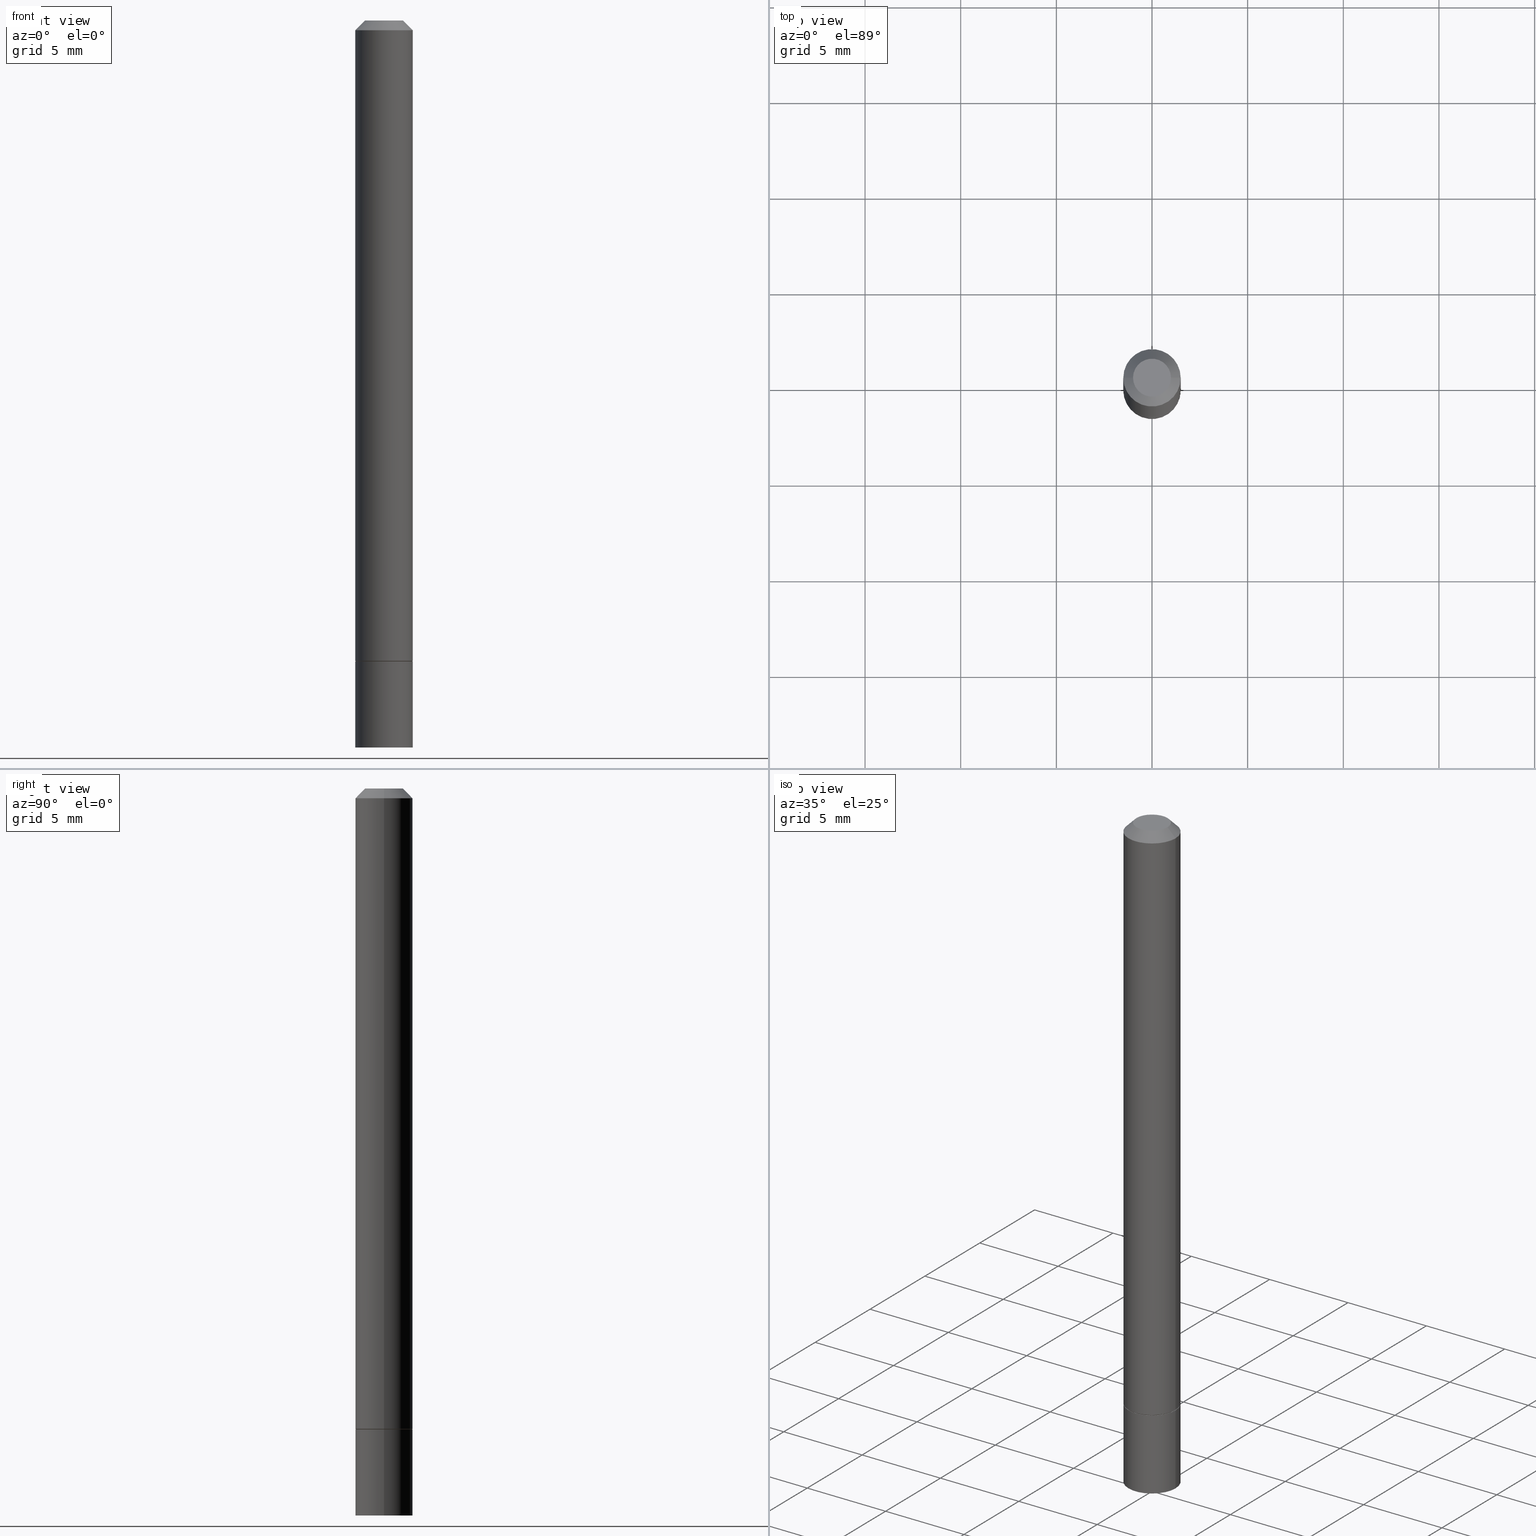
[diagram: canonical four-view strip — front | top / right | iso, engineering-drawing reading convention]
A machine part, canonical four-view strip (front | top / right | iso — engineering-drawing reading convention). The complete STEP part file that produces these views, byte-faithful:
ISO-10303-21;
HEADER;
FILE_DESCRIPTION (( 'STEP AP203' ),
    '1' );
FILE_NAME ('05089.STEP',
    '2024-02-27T12:31:33',
    ( '' ),
    ( '' ),
    'SwSTEP 2.0',
    'SolidWorks 2023',
    '' );
FILE_SCHEMA (( 'CONFIG_CONTROL_DESIGN' ));
ENDSEC;

DATA;
#1 = VERTEX_POINT ( 'NONE', #292 ) ;
#2 = ADVANCED_FACE ( 'NONE', ( #235 ), #183, .T. ) ;
#3 = EDGE_LOOP ( 'NONE', ( #238, #129, #172, #340 ) ) ;
#4 = ADVANCED_FACE ( 'NONE', ( #213 ), #23, .T. ) ;
#5 = ORIENTED_EDGE ( 'NONE', *, *, #57, .F. ) ;
#6 = EDGE_LOOP ( 'NONE', ( #256, #145, #141, #150 ) ) ;
#7 = PERSON_AND_ORGANIZATION ( #35, #90 ) ;
#8 = LINE ( 'NONE', #319, #134 ) ;
#9 = DIRECTION ( 'NONE',  ( -2.445468806185136877E-29, 3.491481338843145188E-15, 1.000000000000000000 ) ) ;
#10 = DIRECTION ( 'NONE',  ( 1.000000000000000000, -6.982962677686272233E-15, 0.000000000000000000 ) ) ;
#11 = CARTESIAN_POINT ( 'NONE',  ( 3.225328808477576615E-29, -4.604914737800224341E-15, -1.318899999999999961 ) ) ;
#12 = EDGE_CURVE ( 'NONE', #311, #338, #117, .T. ) ;
#13 = LINE ( 'NONE', #45, #133 ) ;
#14 = AXIS2_PLACEMENT_3D ( 'NONE', #225, #333, #274 ) ;
#15 = LINE ( 'NONE', #18, #174 ) ;
#16 = AXIS2_PLACEMENT_3D ( 'NONE', #55, #223, #136 ) ;
#17 = CARTESIAN_POINT ( 'NONE',  ( 1.043851414335219781E-45, -1.490343170380447145E-31, -4.268512490100411279E-17 ) ) ;
#18 = CARTESIAN_POINT ( 'NONE',  ( 0.05904999999999994975, -4.749420335452716734E-16, -0.02000000000000006287 ) ) ;
#19 = DIRECTION ( 'NONE',  ( -1.000000000000000000, 6.982962677686266711E-15, 0.000000000000000000 ) ) ;
#20 = CC_DESIGN_PERSON_AND_ORGANIZATION_ASSIGNMENT ( #56, #278, ( #301 ) ) ;
#21 = FACE_OUTER_BOUND ( 'NONE', #3, .T. ) ;
#22 = DATE_AND_TIME ( #268, #337 ) ;
#23 = CONICAL_SURFACE ( 'NONE', #262, 0.05904999999999994975, 0.7853981633974476129 ) ;
#24 = APPROVAL_PERSON_ORGANIZATION ( #7, #243, #38 ) ;
#25 = PERSON_AND_ORGANIZATION ( #35, #90 ) ;
#26 = DIRECTION ( 'NONE',  ( -2.445468806185136597E-29, 3.491481338843145583E-15, 1.000000000000000000 ) ) ;
#27 = DIRECTION ( 'NONE',  ( 1.000000000000000000, -6.982962677686266711E-15, 4.873707401586867728E-29 ) ) ;
#28 = COORDINATED_UNIVERSAL_TIME_OFFSET ( 5, 0, .BEHIND. ) ;
#29 = AXIS2_PLACEMENT_3D ( 'NONE', #288, #323, #19 ) ;
#30 = SECURITY_CLASSIFICATION ( '', '', #168 ) ;
#31 = DIRECTION ( 'NONE',  ( -2.438088387897960049E-29, 3.491481338843145188E-15, 1.000000000000000000 ) ) ;
#32 = ORIENTED_EDGE ( 'NONE', *, *, #91, .F. ) ;
#33 = ORIENTED_EDGE ( 'NONE', *, *, #271, .T. ) ;
#34 = EDGE_CURVE ( 'NONE', #257, #307, #52, .T. ) ;
#35 = PERSON ( 'UNSPECIFIED', 'UNSPECIFIED', 'UNSPECIFIED', ('UNSPECIFIED'), ('UNSPECIFIED'), ('UNSPECIFIED') ) ;
#36 = EDGE_LOOP ( 'NONE', ( #98, #322 ) ) ;
#37 = EDGE_LOOP ( 'NONE', ( #39, #342, #242, #115 ) ) ;
#38 = APPROVAL_ROLE ( '' ) ;
#39 = ORIENTED_EDGE ( 'NONE', *, *, #165, .F. ) ;
#40 = ADVANCED_FACE ( 'NONE', ( #149 ), #224, .T. ) ;
#41 = CARTESIAN_POINT ( 'NONE',  ( 0.000000000000000000, 0.000000000000000000, 0.000000000000000000 ) ) ;
#42 = ORIENTED_EDGE ( 'NONE', *, *, #34, .T. ) ;
#43 = CYLINDRICAL_SURFACE ( 'NONE', #155, 0.05905000000000000526 ) ;
#44 = AXIS2_PLACEMENT_3D ( 'NONE', #179, #216, #49 ) ;
#45 = CARTESIAN_POINT ( 'NONE',  ( -0.05804999999999999744, -4.192444679691485856E-15, -1.318899999999999961 ) ) ;
#46 = LINE ( 'NONE', #130, #110 ) ;
#47 = EDGE_CURVE ( 'NONE', #96, #73, #67, .T. ) ;
#48 = ORIENTED_EDGE ( 'NONE', *, *, #178, .F. ) ;
#49 = DIRECTION ( 'NONE',  ( 1.000000000000000000, -6.982962677686266711E-15, 0.000000000000000000 ) ) ;
#50 = APPROVAL_ROLE ( '' ) ;
#51 = CARTESIAN_POINT ( 'NONE',  ( 0.000000000000000000, 0.000000000000000000, 0.000000000000000000 ) ) ;
#52 = CIRCLE ( 'NONE', #127, 0.03904999999999995974 ) ;
#53 =( NAMED_UNIT ( * ) PLANE_ANGLE_UNIT ( ) SI_UNIT ( $, .RADIAN. ) );
#54 = CARTESIAN_POINT ( 'NONE',  ( 3.225328808477576615E-29, -4.604914737800224341E-15, -1.318899999999999961 ) ) ;
#55 = CARTESIAN_POINT ( 'NONE',  ( 0.000000000000000000, 0.000000000000000000, 0.000000000000000000 ) ) ;
#56 = PERSON_AND_ORGANIZATION ( #35, #90 ) ;
#57 = EDGE_CURVE ( 'NONE', #211, #119, #331, .T. ) ;
#58 = CC_DESIGN_DATE_AND_TIME_ASSIGNMENT ( #77, #112, ( #229 ) ) ;
#59 = CC_DESIGN_APPROVAL ( #243, ( #30 ) ) ;
#60 = DATE_TIME_ROLE ( 'classification_date' ) ;
#61 = VERTEX_POINT ( 'NONE', #177 ) ;
#62 = DIRECTION ( 'NONE',  ( -1.000000000000000000, 6.982962677686265922E-15, -4.876176775795935793E-29 ) ) ;
#63 = AXIS2_PLACEMENT_3D ( 'NONE', #41, #265, #66 ) ;
#64 = EDGE_CURVE ( 'NONE', #119, #211, #95, .T. ) ;
#65 = DIRECTION ( 'NONE',  ( -2.445468806185136597E-29, 3.491481338843145583E-15, 1.000000000000000000 ) ) ;
#66 = DIRECTION ( 'NONE',  ( 1.000000000000000000, -6.982962677686267499E-15, 4.876176775795936353E-29 ) ) ;
#67 = LINE ( 'NONE', #326, #111 ) ;
#68 = CARTESIAN_POINT ( 'NONE',  ( 0.05804999999999999744, -5.010275721239912458E-15, -1.318899999999999961 ) ) ;
#69 = MANIFOLD_SOLID_BREP ( 'Body-Move/Copy2[2]', #239 ) ;
#70 = EDGE_LOOP ( 'NONE', ( #93, #230, #232, #264 ) ) ;
#71 = EDGE_CURVE ( 'NONE', #311, #96, #13, .T. ) ;
#72 = CIRCLE ( 'NONE', #148, 0.05904999999999999832 ) ;
#73 = VERTEX_POINT ( 'NONE', #294 ) ;
#74 = AXIS2_PLACEMENT_3D ( 'NONE', #250, #297, #166 ) ;
#75 = MANIFOLD_SOLID_BREP ( 'Body-Move/Copy2[1]', #358 ) ;
#76 = CARTESIAN_POINT ( 'NONE',  ( 0.05904999999999999832, -5.013767202578754676E-15, -1.317899999999999627 ) ) ;
#77 = DATE_AND_TIME ( #360, #167 ) ;
#78 = PLANE ( 'NONE',  #199 ) ;
#79 = EDGE_CURVE ( 'NONE', #257, #73, #156, .T. ) ;
#80 = CIRCLE ( 'NONE', #282, 0.05904999999999994975 ) ;
#81 = CARTESIAN_POINT ( 'NONE',  ( 2.726846925636483731E-16, 0.03904999999999995974, -1.576849087323267144E-16 ) ) ;
#82 = PRODUCT ( '05089', '05089', '', ( #187 ) ) ;
#83 = DATE_AND_TIME ( #247, #277 ) ;
#84 = CC_DESIGN_PERSON_AND_ORGANIZATION_ASSIGNMENT ( #135, #304, ( #301 ) ) ;
#85 = PERSON_AND_ORGANIZATION ( #35, #90 ) ;
#86 = AXIS2_PLACEMENT_3D ( 'NONE', #181, #348, #261 ) ;
#87 = DESIGN_CONTEXT ( 'detailed design', #336, 'design' ) ;
#88 = ORIENTED_EDGE ( 'NONE', *, *, #12, .F. ) ;
#89 = EDGE_LOOP ( 'NONE', ( #42, #245 ) ) ;
#90 = ORGANIZATION ( 'UNSPECIFIED', 'UNSPECIFIED', '' ) ;
#91 = EDGE_CURVE ( 'NONE', #73, #128, #80, .T. ) ;
#92 = FACE_OUTER_BOUND ( 'NONE', #206, .T. ) ;
#93 = ORIENTED_EDGE ( 'NONE', *, *, #71, .F. ) ;
#94 = DIRECTION ( 'NONE',  ( -2.445468806185136597E-29, 3.491481338843145583E-15, 1.000000000000000000 ) ) ;
#95 = CIRCLE ( 'NONE', #86, 0.05904999999999999832 ) ;
#96 = VERTEX_POINT ( 'NONE', #249 ) ;
#97 = DATE_AND_TIME ( #351, #203 ) ;
#98 = ORIENTED_EDGE ( 'NONE', *, *, #202, .F. ) ;
#99 = DIRECTION ( 'NONE',  ( 1.000000000000000000, -6.982962677686272233E-15, 0.000000000000000000 ) ) ;
#100 = CARTESIAN_POINT ( 'NONE',  ( -0.05904999999999994975, 3.425143193405105373E-16, -0.02000000000000006287 ) ) ;
#101 = DIRECTION ( 'NONE',  ( 0.7071067811864267805, -2.468850131080992517E-15, 0.7071067811866682540 ) ) ;
#102 = ADVANCED_BREP_SHAPE_REPRESENTATION ( '05089', ( #75, #69, #16 ), #317 ) ;
#103 = DIRECTION ( 'NONE',  ( 1.000000000000000000, -6.982962677686272233E-15, 0.000000000000000000 ) ) ;
#104 = CIRCLE ( 'NONE', #350, 0.05905000000000001914 ) ;
#105 = DIRECTION ( 'NONE',  ( -2.445468806185136597E-29, 3.491481338843145583E-15, 1.000000000000000000 ) ) ;
#106 = LENGTH_MEASURE_WITH_UNIT ( LENGTH_MEASURE( 0.02539999999999999897 ), #361 );
#107 = DIRECTION ( 'NONE',  ( 1.000000000000000000, -6.982962677686266711E-15, 0.000000000000000000 ) ) ;
#108 = PERSON_AND_ORGANIZATION_ROLE ( 'design_owner' ) ;
#109 = DIMENSIONAL_EXPONENTS ( 1.000000000000000000, 0.000000000000000000, 0.000000000000000000, 0.000000000000000000, 0.000000000000000000, 0.000000000000000000, 0.000000000000000000 ) ;
#110 = VECTOR ( 'NONE', #157, 39.37007874015748143 ) ;
#111 = VECTOR ( 'NONE', #9, 39.37007874015748143 ) ;
#112 = DATE_TIME_ROLE ( 'creation_date' ) ;
#113 = ORIENTED_EDGE ( 'NONE', *, *, #138, .F. ) ;
#114 = AXIS2_PLACEMENT_3D ( 'NONE', #51, #269, #122 ) ;
#115 = ORIENTED_EDGE ( 'NONE', *, *, #91, .T. ) ;
#116 = ORIENTED_EDGE ( 'NONE', *, *, #237, .F. ) ;
#117 = CIRCLE ( 'NONE', #208, 0.05804999999999999744 ) ;
#118 = LOCAL_TIME ( 7, 31, 33.00000000000000000, #125 ) ;
#119 = VERTEX_POINT ( 'NONE', #194 ) ;
#120 = DIRECTION ( 'NONE',  ( -2.445468806185136877E-29, 3.491481338843145188E-15, 1.000000000000000000 ) ) ;
#121 = VERTEX_POINT ( 'NONE', #76 ) ;
#122 = DIRECTION ( 'NONE',  ( 1.000000000000000000, -6.982962677686267499E-15, 4.876176775795936353E-29 ) ) ;
#123 = CARTESIAN_POINT ( 'NONE',  ( 3.225328808477576615E-29, -4.604914737800224341E-15, -1.318899999999999961 ) ) ;
#124 = DIRECTION ( 'NONE',  ( 1.000000000000000000, -6.982962677686270655E-15, 0.000000000000000000 ) ) ;
#125 = COORDINATED_UNIVERSAL_TIME_OFFSET ( 5, 0, .BEHIND. ) ;
#126 = CC_DESIGN_PERSON_AND_ORGANIZATION_ASSIGNMENT ( #220, #108, ( #82 ) ) ;
#127 = AXIS2_PLACEMENT_3D ( 'NONE', #17, #218, #258 ) ;
#128 = VERTEX_POINT ( 'NONE', #164 ) ;
#129 = ORIENTED_EDGE ( 'NONE', *, *, #287, .T. ) ;
#130 = CARTESIAN_POINT ( 'NONE',  ( -0.05905000000000000526, 4.195754854663391971E-16, -2.904631170795522242E-30 ) ) ;
#131 = EDGE_LOOP ( 'NONE', ( #48, #88 ) ) ;
#132 = DIRECTION ( 'NONE',  ( 1.000000000000000000, -6.982962677686273021E-15, 0.000000000000000000 ) ) ;
#133 = VECTOR ( 'NONE', #241, 39.37007874015748143 ) ;
#134 = VECTOR ( 'NONE', #120, 39.37007874015748143 ) ;
#135 = PERSON_AND_ORGANIZATION ( #35, #90 ) ;
#136 = DIRECTION ( 'NONE',  ( 1.000000000000000000, 0.000000000000000000, 0.000000000000000000 ) ) ;
#137 = PLANE ( 'NONE',  #14 ) ;
#138 = EDGE_CURVE ( 'NONE', #307, #257, #305, .T. ) ;
#139 = APPLICATION_PROTOCOL_DEFINITION ( 'international standard', 'config_control_design', 1994, #336 ) ;
#140 = ORIENTED_EDGE ( 'NONE', *, *, #339, .F. ) ;
#141 = ORIENTED_EDGE ( 'NONE', *, *, #255, .F. ) ;
#142 = ADVANCED_FACE ( 'NONE', ( #221 ), #78, .F. ) ;
#143 = CIRCLE ( 'NONE', #74, 0.05904999999999999832 ) ;
#144 = EDGE_LOOP ( 'NONE', ( #204, #33, #281, #32 ) ) ;
#145 = ORIENTED_EDGE ( 'NONE', *, *, #47, .T. ) ;
#146 = ADVANCED_FACE ( 'NONE', ( #191 ), #137, .T. ) ;
#147 = ORIENTED_EDGE ( 'NONE', *, *, #202, .T. ) ;
#148 = AXIS2_PLACEMENT_3D ( 'NONE', #219, #298, #132 ) ;
#149 = FACE_OUTER_BOUND ( 'NONE', #279, .T. ) ;
#150 = ORIENTED_EDGE ( 'NONE', *, *, #328, .F. ) ;
#151 = LINE ( 'NONE', #185, #170 ) ;
#152 = CARTESIAN_POINT ( 'NONE',  ( 3.225328808477576615E-29, -4.604914737800224341E-15, -1.318899999999999961 ) ) ;
#153 = SHAPE_DEFINITION_REPRESENTATION ( #286, #102 ) ;
#154 = VECTOR ( 'NONE', #101, 39.37007874015748143 ) ;
#155 = AXIS2_PLACEMENT_3D ( 'NONE', #357, #105, #327 ) ;
#156 = LINE ( 'NONE', #100, #193 ) ;
#157 = DIRECTION ( 'NONE',  ( -2.445468806185136877E-29, 3.491481338843145188E-15, 1.000000000000000000 ) ) ;
#158 = ORIENTED_EDGE ( 'NONE', *, *, #79, .F. ) ;
#159 = COORDINATED_UNIVERSAL_TIME_OFFSET ( 5, 0, .BEHIND. ) ;
#160 = ADVANCED_FACE ( 'NONE', ( #252 ), #182, .T. ) ;
#161 = CYLINDRICAL_SURFACE ( 'NONE', #171, 0.05905000000000000526 ) ;
#162 = DIRECTION ( 'NONE',  ( 1.000000000000000000, -6.982962677686272233E-15, 0.000000000000000000 ) ) ;
#163 = CIRCLE ( 'NONE', #233, 0.05804999999999999744 ) ;
#164 = CARTESIAN_POINT ( 'NONE',  ( 0.05904999999999994975, -4.749420335452716734E-16, -0.02000000000000006287 ) ) ;
#165 = EDGE_CURVE ( 'NONE', #307, #128, #15, .T. ) ;
#166 = DIRECTION ( 'NONE',  ( 1.000000000000000000, -6.982962677686273021E-15, 0.000000000000000000 ) ) ;
#167 = LOCAL_TIME ( 7, 31, 33.00000000000000000, #366 ) ;
#168 = SECURITY_CLASSIFICATION_LEVEL ( 'unclassified' ) ;
#169 = ORIENTED_EDGE ( 'NONE', *, *, #186, .F. ) ;
#170 = VECTOR ( 'NONE', #214, 39.37007874015748143 ) ;
#171 = AXIS2_PLACEMENT_3D ( 'NONE', #267, #246, #347 ) ;
#172 = ORIENTED_EDGE ( 'NONE', *, *, #186, .T. ) ;
#173 = EDGE_LOOP ( 'NONE', ( #147, #266, #5, #169 ) ) ;
#174 = VECTOR ( 'NONE', #353, 39.37007874015748854 ) ;
#175 = CARTESIAN_POINT ( 'NONE',  ( 4.123439461174062774E-16, 0.05904999999999539784, -1.318900000000000183 ) ) ;
#176 = DIRECTION ( 'NONE',  ( 2.445468806185136597E-29, -3.491481338843145583E-15, -1.000000000000000000 ) ) ;
#177 = CARTESIAN_POINT ( 'NONE',  ( -0.05905000000000002608, -4.494684498955387902E-15, -1.496099999999999985 ) ) ;
#178 = EDGE_CURVE ( 'NONE', #338, #311, #163, .T. ) ;
#179 = CARTESIAN_POINT ( 'NONE',  ( 4.890937612370288923E-31, -6.982962677686312563E-17, -0.02000000000000006287 ) ) ;
#180 = APPROVAL_DATE_TIME ( #97, #243 ) ;
#181 = CARTESIAN_POINT ( 'NONE',  ( 3.225328808477576615E-29, -4.604914737800224341E-15, -1.318899999999999961 ) ) ;
#182 = CYLINDRICAL_SURFACE ( 'NONE', #63, 0.05904999999999997057 ) ;
#183 = CONICAL_SURFACE ( 'NONE', #29, 0.05904999999999994975, 0.7853981633974476129 ) ;
#184 = CARTESIAN_POINT ( 'NONE',  ( 4.890937612370288923E-31, -6.982962677686312563E-17, -0.02000000000000006287 ) ) ;
#185 = CARTESIAN_POINT ( 'NONE',  ( 0.05905000000000000526, -4.123439461173741313E-16, 2.879382386107500571E-30 ) ) ;
#186 = EDGE_CURVE ( 'NONE', #1, #211, #151, .T. ) ;
#187 = MECHANICAL_CONTEXT ( 'NONE', #285, 'mechanical' ) ;
#188 = DIRECTION ( 'NONE',  ( 1.000000000000000000, -6.982962677686265922E-15, 4.876176775795935793E-29 ) ) ;
#189 = FACE_OUTER_BOUND ( 'NONE', #144, .T. ) ;
#190 = APPROVAL_DATE_TIME ( #22, #303 ) ;
#191 = FACE_OUTER_BOUND ( 'NONE', #36, .T. ) ;
#192 = APPLICATION_PROTOCOL_DEFINITION ( 'international standard', 'config_control_design', 1994, #285 ) ;
#193 = VECTOR ( 'NONE', #215, 39.37007874015748854 ) ;
#194 = CARTESIAN_POINT ( 'NONE',  ( -0.05904999999999999832, -4.494684498955387902E-15, -1.318899999999999961 ) ) ;
#195 = EDGE_CURVE ( 'NONE', #61, #119, #46, .T. ) ;
#196 = DIRECTION ( 'NONE',  ( 2.438088387897960049E-29, -3.491481338843145188E-15, -1.000000000000000000 ) ) ;
#197 = APPROVAL_DATE_TIME ( #83, #343 ) ;
#198 = PERSON_AND_ORGANIZATION_ROLE ( 'classification_officer' ) ;
#199 = AXIS2_PLACEMENT_3D ( 'NONE', #54, #31, #188 ) ;
#200 = ORIENTED_EDGE ( 'NONE', *, *, #57, .T. ) ;
#201 = CIRCLE ( 'NONE', #44, 0.05904999999999994975 ) ;
#202 = EDGE_CURVE ( 'NONE', #1, #61, #308, .T. ) ;
#203 = LOCAL_TIME ( 7, 31, 33.00000000000000000, #318 ) ;
#204 = ORIENTED_EDGE ( 'NONE', *, *, #47, .F. ) ;
#205 = ORIENTED_EDGE ( 'NONE', *, *, #165, .T. ) ;
#206 = EDGE_LOOP ( 'NONE', ( #200, #254 ) ) ;
#207 = CALENDAR_DATE ( 2024, 27, 2 ) ;
#208 = AXIS2_PLACEMENT_3D ( 'NONE', #354, #259, #103 ) ;
#209 = AXIS2_PLACEMENT_3D ( 'NONE', #362, #26, #162 ) ;
#210 = CC_DESIGN_DATE_AND_TIME_ASSIGNMENT ( #312, #60, ( #30 ) ) ;
#211 = VERTEX_POINT ( 'NONE', #355 ) ;
#212 = DIRECTION ( 'NONE',  ( -2.445468806185136597E-29, 3.491481338843145583E-15, 1.000000000000000000 ) ) ;
#213 = FACE_OUTER_BOUND ( 'NONE', #37, .T. ) ;
#214 = DIRECTION ( 'NONE',  ( -2.445468806185136877E-29, 3.491481338843145188E-15, 1.000000000000000000 ) ) ;
#215 = DIRECTION ( 'NONE',  ( -0.7071067811865469066, 2.468850131082251144E-15, -0.7071067811865479058 ) ) ;
#216 = DIRECTION ( 'NONE',  ( -2.445468806185136597E-29, 3.491481338843145583E-15, 1.000000000000000000 ) ) ;
#217 = PRODUCT_RELATED_PRODUCT_CATEGORY ( 'detail', '', ( #82 ) ) ;
#218 = DIRECTION ( 'NONE',  ( -2.445468806185136597E-29, 3.491481338843145583E-15, 1.000000000000000000 ) ) ;
#219 = CARTESIAN_POINT ( 'NONE',  ( 3.222883339671390452E-29, -4.601423256461380545E-15, -1.317899999999999627 ) ) ;
#220 = PERSON_AND_ORGANIZATION ( #35, #90 ) ;
#221 = FACE_OUTER_BOUND ( 'NONE', #131, .T. ) ;
#222 =( CONVERSION_BASED_UNIT ( 'INCH', #106 ) LENGTH_UNIT ( ) NAMED_UNIT ( #109 ) );
#223 = DIRECTION ( 'NONE',  ( 0.000000000000000000, 0.000000000000000000, 1.000000000000000000 ) ) ;
#224 = CONICAL_SURFACE ( 'NONE', #251, 0.05804999999999999744, 0.7853981633972775267 ) ;
#225 = CARTESIAN_POINT ( 'NONE',  ( 4.123439461174106654E-16, 0.05904999999999479415, -1.496100000000000207 ) ) ;
#226 = APPROVAL_PERSON_ORGANIZATION ( #302, #343, #329 ) ;
#227 = FACE_OUTER_BOUND ( 'NONE', #89, .T. ) ;
#228 = APPROVAL_STATUS ( 'not_yet_approved' ) ;
#229 = PRODUCT_DEFINITION ( 'UNKNOWN', '', #301, #87 ) ;
#230 = ORIENTED_EDGE ( 'NONE', *, *, #12, .T. ) ;
#231 = CC_DESIGN_APPROVAL ( #343, ( #229 ) ) ;
#232 = ORIENTED_EDGE ( 'NONE', *, *, #237, .T. ) ;
#233 = AXIS2_PLACEMENT_3D ( 'NONE', #11, #212, #99 ) ;
#234 = AXIS2_PLACEMENT_3D ( 'NONE', #175, #260, #62 ) ;
#235 = FACE_OUTER_BOUND ( 'NONE', #356, .T. ) ;
#236 = CARTESIAN_POINT ( 'NONE',  ( 3.658665880933582389E-29, -5.223605231043229660E-15, -1.496099999999999985 ) ) ;
#237 = EDGE_CURVE ( 'NONE', #338, #121, #349, .T. ) ;
#238 = ORIENTED_EDGE ( 'NONE', *, *, #195, .F. ) ;
#239 = CLOSED_SHELL ( 'NONE', ( #40, #160, #2, #4, #284, #363, #142, #359 ) ) ;
#240 = AXIS2_PLACEMENT_3D ( 'NONE', #81, #196, #330 ) ;
#241 = DIRECTION ( 'NONE',  ( -0.7071067811864267805, 7.493145998869918709E-15, 0.7071067811866682540 ) ) ;
#242 = ORIENTED_EDGE ( 'NONE', *, *, #79, .T. ) ;
#243 = APPROVAL ( #289, 'UNSPECIFIED' ) ;
#244 = CARTESIAN_POINT ( 'NONE',  ( 3.658665880933582389E-29, -5.223605231043229660E-15, -1.496099999999999985 ) ) ;
#245 = ORIENTED_EDGE ( 'NONE', *, *, #138, .T. ) ;
#246 = DIRECTION ( 'NONE',  ( -2.445468806185136597E-29, 3.491481338843145583E-15, 1.000000000000000000 ) ) ;
#247 = CALENDAR_DATE ( 2024, 27, 2 ) ;
#248 = CONICAL_SURFACE ( 'NONE', #209, 0.05804999999999999744, 0.7853981633972775267 ) ;
#249 = CARTESIAN_POINT ( 'NONE',  ( -0.05904999999999999832, -1.916050956152782034E-15, -1.317899999999999627 ) ) ;
#250 = CARTESIAN_POINT ( 'NONE',  ( 3.222883339671390452E-29, -4.601423256461380545E-15, -1.317899999999999627 ) ) ;
#251 = AXIS2_PLACEMENT_3D ( 'NONE', #152, #65, #10 ) ;
#252 = FACE_OUTER_BOUND ( 'NONE', #6, .T. ) ;
#253 = PERSON_AND_ORGANIZATION_ROLE ( 'creator' ) ;
#254 = ORIENTED_EDGE ( 'NONE', *, *, #64, .T. ) ;
#255 = EDGE_CURVE ( 'NONE', #128, #73, #201, .T. ) ;
#256 = ORIENTED_EDGE ( 'NONE', *, *, #339, .T. ) ;
#257 = VERTEX_POINT ( 'NONE', #324 ) ;
#258 = DIRECTION ( 'NONE',  ( 1.000000000000000000, -6.982962677686266711E-15, 4.873707401586867728E-29 ) ) ;
#259 = DIRECTION ( 'NONE',  ( -2.445468806185136597E-29, 3.491481338843145583E-15, 1.000000000000000000 ) ) ;
#260 = DIRECTION ( 'NONE',  ( 2.438088387897960049E-29, -3.491481338843145188E-15, -1.000000000000000000 ) ) ;
#261 = DIRECTION ( 'NONE',  ( 1.000000000000000000, -6.982962677686273021E-15, 0.000000000000000000 ) ) ;
#262 = AXIS2_PLACEMENT_3D ( 'NONE', #320, #176, #314 ) ;
#263 = ADVANCED_FACE ( 'NONE', ( #293 ), #161, .T. ) ;
#264 = ORIENTED_EDGE ( 'NONE', *, *, #271, .F. ) ;
#265 = DIRECTION ( 'NONE',  ( -2.445468806185136597E-29, 3.491481338843145583E-15, 1.000000000000000000 ) ) ;
#266 = ORIENTED_EDGE ( 'NONE', *, *, #195, .T. ) ;
#267 = CARTESIAN_POINT ( 'NONE',  ( 0.000000000000000000, 0.000000000000000000, 0.000000000000000000 ) ) ;
#268 = CALENDAR_DATE ( 2024, 27, 2 ) ;
#269 = DIRECTION ( 'NONE',  ( -2.445468806185136597E-29, 3.491481338843145583E-15, 1.000000000000000000 ) ) ;
#270 = PERSON_AND_ORGANIZATION ( #35, #90 ) ;
#271 = EDGE_CURVE ( 'NONE', #96, #121, #72, .T. ) ;
#272 = CARTESIAN_POINT ( 'NONE',  ( 1.043851414335219781E-45, -1.490343170380447145E-31, -4.268512490100411279E-17 ) ) ;
#273 = APPROVAL_STATUS ( 'not_yet_approved' ) ;
#274 = DIRECTION ( 'NONE',  ( -1.000000000000000000, 6.982962677686265922E-15, -4.876176775795935793E-29 ) ) ;
#275 =( NAMED_UNIT ( * ) SI_UNIT ( $, .STERADIAN. ) SOLID_ANGLE_UNIT ( ) );
#276 = ADVANCED_FACE ( 'NONE', ( #21 ), #43, .T. ) ;
#277 = LOCAL_TIME ( 7, 31, 33.00000000000000000, #28 ) ;
#278 = PERSON_AND_ORGANIZATION_ROLE ( 'design_supplier' ) ;
#279 = EDGE_LOOP ( 'NONE', ( #344, #352, #140, #116 ) ) ;
#280 = CARTESIAN_POINT ( 'NONE',  ( 0.03904999999999995974, -3.714222401791248901E-16, -4.268512490100186330E-17 ) ) ;
#281 = ORIENTED_EDGE ( 'NONE', *, *, #328, .T. ) ;
#282 = AXIS2_PLACEMENT_3D ( 'NONE', #184, #295, #107 ) ;
#283 = CC_DESIGN_APPROVAL ( #303, ( #301 ) ) ;
#284 = ADVANCED_FACE ( 'NONE', ( #189 ), #316, .T. ) ;
#285 = APPLICATION_CONTEXT ( 'configuration controlled 3d designs of mechanical parts and assemblies' ) ;
#286 = PRODUCT_DEFINITION_SHAPE ( 'NONE', 'NONE',  #229 ) ;
#287 = EDGE_CURVE ( 'NONE', #61, #1, #104, .T. ) ;
#288 = CARTESIAN_POINT ( 'NONE',  ( 4.890937612370288923E-31, -6.982962677686312563E-17, -0.02000000000000006287 ) ) ;
#289 = APPROVAL_STATUS ( 'not_yet_approved' ) ;
#290 = DIRECTION ( 'NONE',  ( -2.445468806185136597E-29, 3.491481338843145583E-15, 1.000000000000000000 ) ) ;
#291 = DIRECTION ( 'NONE',  ( 1.000000000000000000, -6.982962677686270655E-15, 0.000000000000000000 ) ) ;
#292 = CARTESIAN_POINT ( 'NONE',  ( 0.05905000000000001914, -5.635949177160603791E-15, -1.496099999999999985 ) ) ;
#293 = FACE_OUTER_BOUND ( 'NONE', #173, .T. ) ;
#294 = CARTESIAN_POINT ( 'NONE',  ( -0.05904999999999994975, 3.425143193405105373E-16, -0.02000000000000006287 ) ) ;
#295 = DIRECTION ( 'NONE',  ( -2.445468806185136597E-29, 3.491481338843145583E-15, 1.000000000000000000 ) ) ;
#296 = DIRECTION ( 'NONE',  ( -2.445468806185136597E-29, 3.491481338843145583E-15, 1.000000000000000000 ) ) ;
#297 = DIRECTION ( 'NONE',  ( -2.445468806185136597E-29, 3.491481338843145583E-15, 1.000000000000000000 ) ) ;
#298 = DIRECTION ( 'NONE',  ( -2.445468806185136597E-29, 3.491481338843145583E-15, 1.000000000000000000 ) ) ;
#299 = CARTESIAN_POINT ( 'NONE',  ( 0.05804999999999999744, -5.010275721239912458E-15, -1.318899999999999961 ) ) ;
#300 = CC_DESIGN_PERSON_AND_ORGANIZATION_ASSIGNMENT ( #270, #253, ( #229 ) ) ;
#301 = PRODUCT_DEFINITION_FORMATION_WITH_SPECIFIED_SOURCE ( 'ANY', '', #82, .NOT_KNOWN. ) ;
#302 = PERSON_AND_ORGANIZATION ( #35, #90 ) ;
#303 = APPROVAL ( #228, 'UNSPECIFIED' ) ;
#304 = PERSON_AND_ORGANIZATION_ROLE ( 'creator' ) ;
#305 = CIRCLE ( 'NONE', #315, 0.03904999999999995974 ) ;
#306 = APPROVAL_PERSON_ORGANIZATION ( #25, #303, #50 ) ;
#307 = VERTEX_POINT ( 'NONE', #280 ) ;
#308 = CIRCLE ( 'NONE', #364, 0.05905000000000001914 ) ;
#309 = AXIS2_PLACEMENT_3D ( 'NONE', #123, #290, #346 ) ;
#310 = ORIENTED_EDGE ( 'NONE', *, *, #255, .T. ) ;
#311 = VERTEX_POINT ( 'NONE', #341 ) ;
#312 = DATE_AND_TIME ( #207, #118 ) ;
#313 = PLANE ( 'NONE',  #234 ) ;
#314 = DIRECTION ( 'NONE',  ( -1.000000000000000000, 6.982962677686266711E-15, 0.000000000000000000 ) ) ;
#315 = AXIS2_PLACEMENT_3D ( 'NONE', #272, #365, #27 ) ;
#316 = CYLINDRICAL_SURFACE ( 'NONE', #114, 0.05904999999999997057 ) ;
#317 =( GEOMETRIC_REPRESENTATION_CONTEXT ( 3 ) GLOBAL_UNCERTAINTY_ASSIGNED_CONTEXT ( ( #345 ) ) GLOBAL_UNIT_ASSIGNED_CONTEXT ( ( #222, #53, #275 ) ) REPRESENTATION_CONTEXT ( 'NONE', 'WORKASPACE' ) );
#318 = COORDINATED_UNIVERSAL_TIME_OFFSET ( 5, 0, .BEHIND. ) ;
#319 = CARTESIAN_POINT ( 'NONE',  ( 0.05904999999999997057, -4.123439461173738848E-16, 2.879382386107498819E-30 ) ) ;
#320 = CARTESIAN_POINT ( 'NONE',  ( 4.890937612370288923E-31, -6.982962677686312563E-17, -0.02000000000000006287 ) ) ;
#321 = CC_DESIGN_PERSON_AND_ORGANIZATION_ASSIGNMENT ( #85, #198, ( #30 ) ) ;
#322 = ORIENTED_EDGE ( 'NONE', *, *, #287, .F. ) ;
#323 = DIRECTION ( 'NONE',  ( 2.445468806185136597E-29, -3.491481338843145583E-15, -1.000000000000000000 ) ) ;
#324 = CARTESIAN_POINT ( 'NONE',  ( -0.03904999999999995974, 3.075995059520794305E-16, -4.268512490100614657E-17 ) ) ;
#325 = CC_DESIGN_SECURITY_CLASSIFICATION ( #30, ( #301 ) ) ;
#326 = CARTESIAN_POINT ( 'NONE',  ( -0.05904999999999997057, 4.195754854663389506E-16, -2.904631170795520841E-30 ) ) ;
#327 = DIRECTION ( 'NONE',  ( 1.000000000000000000, -6.982962677686267499E-15, 4.876176775795936353E-29 ) ) ;
#328 = EDGE_CURVE ( 'NONE', #121, #128, #8, .T. ) ;
#329 = APPROVAL_ROLE ( '' ) ;
#330 = DIRECTION ( 'NONE',  ( -1.000000000000000000, 6.982962677686265922E-15, -4.876176775795935793E-29 ) ) ;
#331 = CIRCLE ( 'NONE', #309, 0.05904999999999999832 ) ;
#332 = PLANE ( 'NONE',  #240 ) ;
#333 = DIRECTION ( 'NONE',  ( 2.438088387897960049E-29, -3.491481338843145188E-15, -1.000000000000000000 ) ) ;
#334 = ADVANCED_FACE ( 'NONE', ( #92 ), #313, .F. ) ;
#335 = FACE_OUTER_BOUND ( 'NONE', #70, .T. ) ;
#336 = APPLICATION_CONTEXT ( 'configuration controlled 3d designs of mechanical parts and assemblies' ) ;
#337 = LOCAL_TIME ( 7, 31, 33.00000000000000000, #159 ) ;
#338 = VERTEX_POINT ( 'NONE', #299 ) ;
#339 = EDGE_CURVE ( 'NONE', #121, #96, #143, .T. ) ;
#340 = ORIENTED_EDGE ( 'NONE', *, *, #64, .F. ) ;
#341 = CARTESIAN_POINT ( 'NONE',  ( -0.05804999999999999744, -4.187146225343263454E-15, -1.318899999999999961 ) ) ;
#342 = ORIENTED_EDGE ( 'NONE', *, *, #34, .F. ) ;
#343 = APPROVAL ( #273, 'UNSPECIFIED' ) ;
#344 = ORIENTED_EDGE ( 'NONE', *, *, #178, .T. ) ;
#345 = UNCERTAINTY_MEASURE_WITH_UNIT (LENGTH_MEASURE( 1.000000000000000082E-05 ), #222, 'distance_accuracy_value', 'NONE');
#346 = DIRECTION ( 'NONE',  ( 1.000000000000000000, -6.982962677686273021E-15, 0.000000000000000000 ) ) ;
#347 = DIRECTION ( 'NONE',  ( 1.000000000000000000, -6.982962677686267499E-15, 4.876176775795936353E-29 ) ) ;
#348 = DIRECTION ( 'NONE',  ( -2.445468806185136597E-29, 3.491481338843145583E-15, 1.000000000000000000 ) ) ;
#349 = LINE ( 'NONE', #68, #154 ) ;
#350 = AXIS2_PLACEMENT_3D ( 'NONE', #236, #94, #291 ) ;
#351 = CALENDAR_DATE ( 2024, 27, 2 ) ;
#352 = ORIENTED_EDGE ( 'NONE', *, *, #71, .T. ) ;
#353 = DIRECTION ( 'NONE',  ( 0.7071067811865469066, -7.319954787623252890E-15, -0.7071067811865479058 ) ) ;
#354 = CARTESIAN_POINT ( 'NONE',  ( 3.225328808477576615E-29, -4.604914737800224341E-15, -1.318899999999999961 ) ) ;
#355 = CARTESIAN_POINT ( 'NONE',  ( 0.05904999999999999832, -5.017258683917598472E-15, -1.318899999999999961 ) ) ;
#356 = EDGE_LOOP ( 'NONE', ( #113, #205, #310, #158 ) ) ;
#357 = CARTESIAN_POINT ( 'NONE',  ( 0.000000000000000000, 0.000000000000000000, 0.000000000000000000 ) ) ;
#358 = CLOSED_SHELL ( 'NONE', ( #263, #146, #334, #276 ) ) ;
#359 = ADVANCED_FACE ( 'NONE', ( #227 ), #332, .F. ) ;
#360 = CALENDAR_DATE ( 2024, 27, 2 ) ;
#361 =( LENGTH_UNIT ( ) NAMED_UNIT ( * ) SI_UNIT ( $, .METRE. ) );
#362 = CARTESIAN_POINT ( 'NONE',  ( 3.225328808477576615E-29, -4.604914737800224341E-15, -1.318899999999999961 ) ) ;
#363 = ADVANCED_FACE ( 'NONE', ( #335 ), #248, .T. ) ;
#364 = AXIS2_PLACEMENT_3D ( 'NONE', #244, #296, #124 ) ;
#365 = DIRECTION ( 'NONE',  ( -2.445468806185136597E-29, 3.491481338843145583E-15, 1.000000000000000000 ) ) ;
#366 = COORDINATED_UNIVERSAL_TIME_OFFSET ( 5, 0, .BEHIND. ) ;
ENDSEC;
END-ISO-10303-21;
